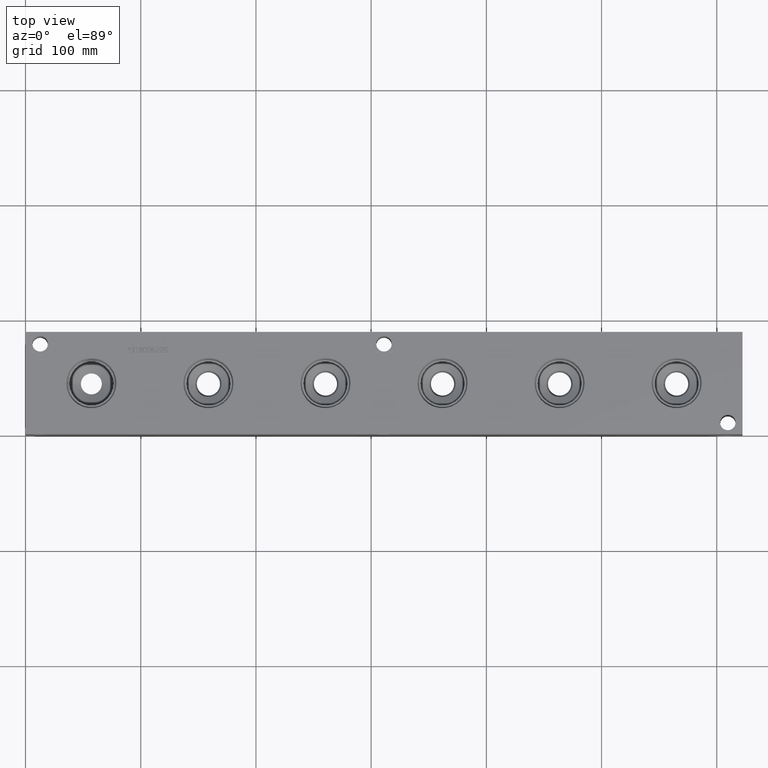
[diagram: clean part render]
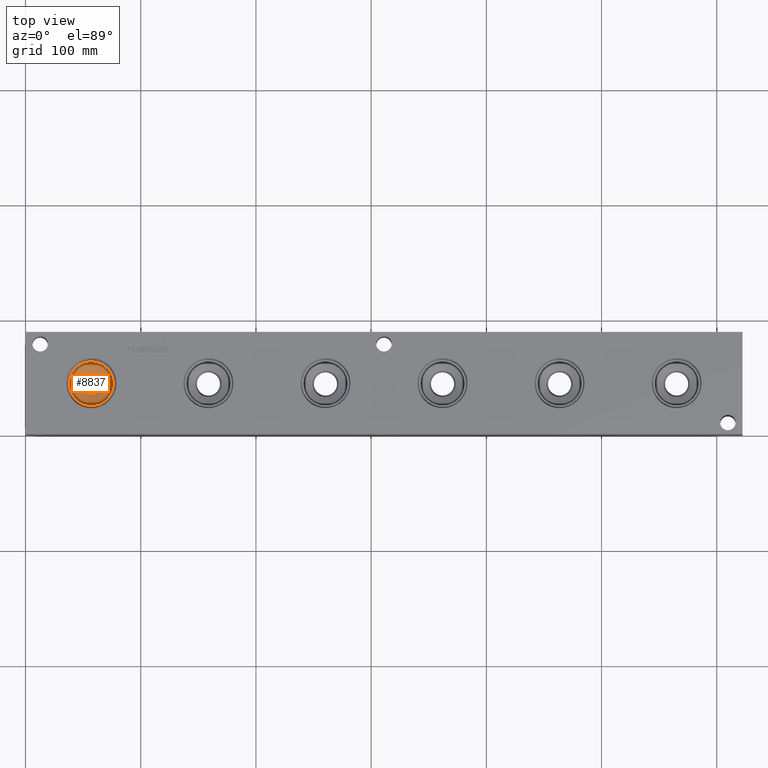
[diagram: same view with one face highlighted and labeled with its STEP entity id]
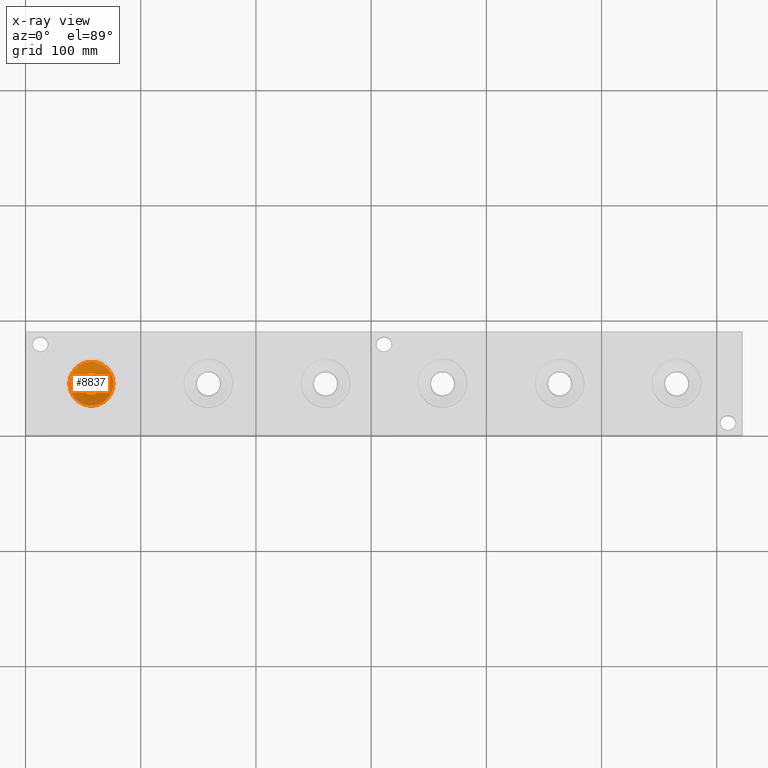
[diagram: x-ray of the same camera — body ghosted, the highlighted face saturated]
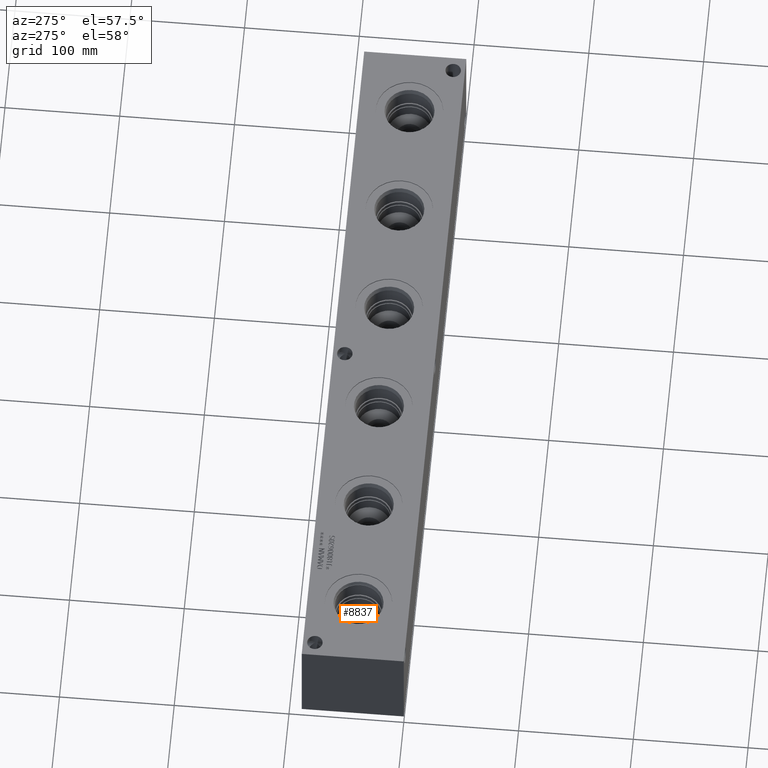
[diagram: same view with one face highlighted and labeled with its STEP entity id]
A machine part, top view. The second image highlights one B-rep face of the part: STEP entity #8837.
The next image is the same camera in x-ray: the body ghosted, the highlighted face saturated — about 0% of this face is hidden behind the body in this view.
A second angle (auxiliary view) of the same face is appended — the face is thin or edge-on in the first view.
In plain terms, the highlighted conical surface has half-angle 60 deg.
Its self-contained STEP definition (entity closure, byte-faithful):
#58=CONICAL_SURFACE('',#9426,9.525,1.0471975511966);
#260=CIRCLE('',#9257,9.081735594971);
#359=CIRCLE('',#9427,19.05);
#360=CIRCLE('',#9428,19.05);
#1245=FACE_OUTER_BOUND('',#1769,.T.);
#1769=EDGE_LOOP('',(#7750,#7751,#7752,#7753,#7754));
#2549=LINE('',#15355,#3312);
#3312=VECTOR('',#11328,9.525);
#4027=VERTEX_POINT('',#15026);
#4126=VERTEX_POINT('',#15352);
#4127=VERTEX_POINT('',#15353);
#5193=EDGE_CURVE('',#4027,#4027,#260,.T.);
#5348=EDGE_CURVE('',#4126,#4127,#359,.T.);
#5349=EDGE_CURVE('',#4127,#4027,#2549,.T.);
#5350=EDGE_CURVE('',#4127,#4126,#360,.T.);
#7750=ORIENTED_EDGE('',*,*,#5348,.T.);
#7751=ORIENTED_EDGE('',*,*,#5349,.T.);
#7752=ORIENTED_EDGE('',*,*,#5193,.T.);
#7753=ORIENTED_EDGE('',*,*,#5349,.F.);
#7754=ORIENTED_EDGE('',*,*,#5350,.T.);
#8837=ADVANCED_FACE('',(#1245),#58,.F.);
#9257=AXIS2_PLACEMENT_3D('',#15028,#10930,#10931);
#9426=AXIS2_PLACEMENT_3D('',#15351,#11324,#11325);
#9427=AXIS2_PLACEMENT_3D('',#15354,#11326,#11327);
#9428=AXIS2_PLACEMENT_3D('',#15356,#11329,#11330);
#10930=DIRECTION('center_axis',(0.,0.,-1.));
#10931=DIRECTION('ref_axis',(1.,0.,0.));
#11324=DIRECTION('center_axis',(0.,0.,1.));
#11325=DIRECTION('ref_axis',(1.,0.,0.));
#11326=DIRECTION('center_axis',(0.,0.,1.));
#11327=DIRECTION('ref_axis',(1.,0.,0.));
#11328=DIRECTION('',(0.866025403784439,1.06057523872491E-16,-0.5));
#11329=DIRECTION('center_axis',(0.,0.,1.));
#11330=DIRECTION('ref_axis',(1.,0.,0.));
#15026=CARTESIAN_POINT('',(48.068264405029,44.45,48.0976998624031));
#15028=CARTESIAN_POINT('Origin',(57.15,44.45,48.0976998624031));
#15351=CARTESIAN_POINT('Origin',(57.15,44.45,48.3536186859688));
#15352=CARTESIAN_POINT('',(76.2,44.45,53.85288));
#15353=CARTESIAN_POINT('',(38.1,44.45,53.85288));
#15354=CARTESIAN_POINT('Origin',(57.15,44.45,53.85288));
#15355=CARTESIAN_POINT('',(47.625,44.45,48.3536186859688));
#15356=CARTESIAN_POINT('Origin',(57.15,44.45,53.85288));